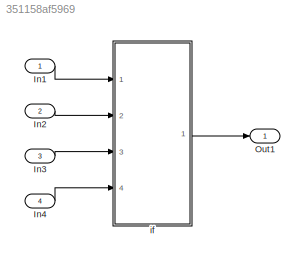
MODEL slx_351158af5969
KIND model
CONFIG AbsTol = auto
CONFIG EnableMultiTasking = off
CONFIG FixedStep = auto
CONFIG MaxStep = auto
CONFIG MinStep = auto
CONFIG RelTol = 1e-3
CONFIG SampleTimeConstraint = Unconstrained
CONFIG Solver = FixedStepDiscrete
CONFIG SolverName = FixedStepDiscrete
CONFIG StartTime = 0.0
CONFIG StopTime = 10.0
BLOCK [Inport] In1
  IconDisplay = Port number
BLOCK [Inport] In2
  IconDisplay = Port number
  Port = 2
BLOCK [Inport] In3
  IconDisplay = Port number
  Port = 3
BLOCK [Inport] In4
  IconDisplay = Port number
  Port = 4
BLOCK [Outport] Out1
  IconDisplay = Port number
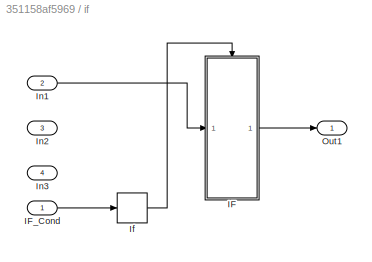
BLOCK [SubSystem] if
  AncestorBlock = Block_TestLib/if
  Ports = [4, 1]
  RequestExecContextInheritance = off
  Variant = off
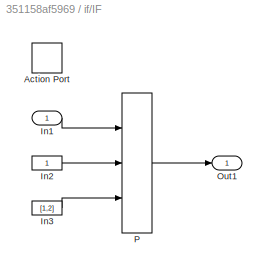
BLOCK [SubSystem] if/IF
  Ports = [1, 1, 0, 0, 0, 0, 0, 1]
  RequestExecContextInheritance = off
  TreatAsAtomicUnit = on
  Variant = off
BLOCK [ActionPort] if/IF/Action Port
  ActionType = then
BLOCK [Inport] if/IF/In1
  IconDisplay = Port number
  OutDataTypeStr = double
  PortDimensions = [2 3 2 2]
BLOCK [Constant] if/IF/In2
BLOCK [Constant] if/IF/In3
  Value = [1,2]
BLOCK [Outport] if/IF/Out1
  IconDisplay = Port number
BLOCK [Selector] if/IF/P
  IndexOptions = Starting index (port),Select all,Index vector (dialog),Index vector (port)
  Indices = [],[],[1,2],[]
  InputPortWidth = 3
  NumberOfDimensions = 4
  OutputSizes = 2,,,
  Ports = [3, 1]
BLOCK [Inport] if/IF_Cond
  IconDisplay = Port number
  OutDataTypeStr = boolean
BLOCK [If] if/If
  IfExpression = u1
  Ports = [1, 1]
  ShowElse = off
BLOCK [Inport] if/In1
  IconDisplay = Port number
  Port = 2
BLOCK [Inport] if/In2
  IconDisplay = Port number
  Port = 3
BLOCK [Inport] if/In3
  IconDisplay = Port number
  Port = 4
BLOCK [Outport] if/Out1
  IconDisplay = Port number
LINE In1:1 -> if:1
LINE In2:1 -> if:2
LINE In3:1 -> if:3
LINE In4:1 -> if:4
LINE if:1 -> Out1:1
